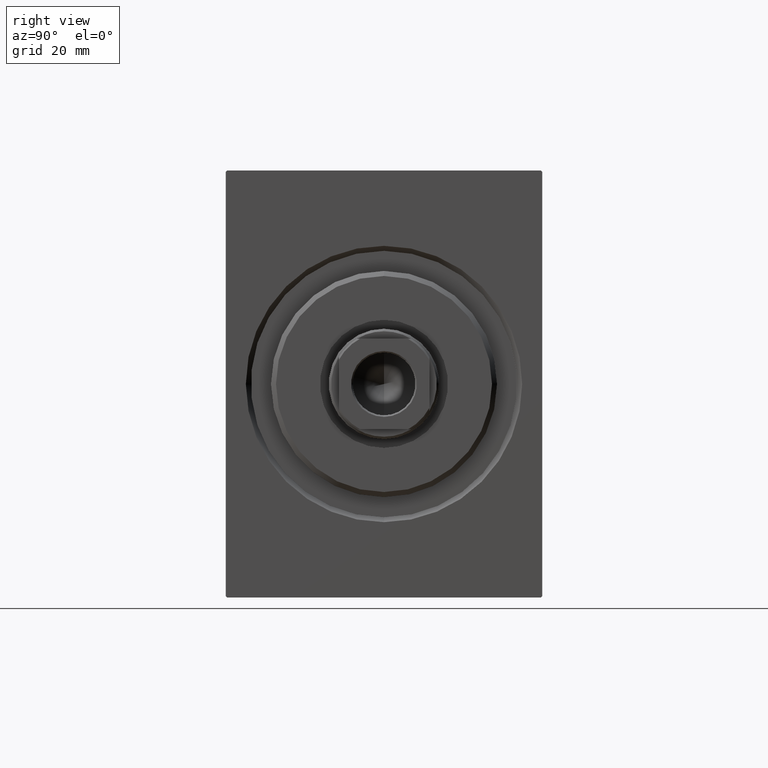
[diagram: clean part render]
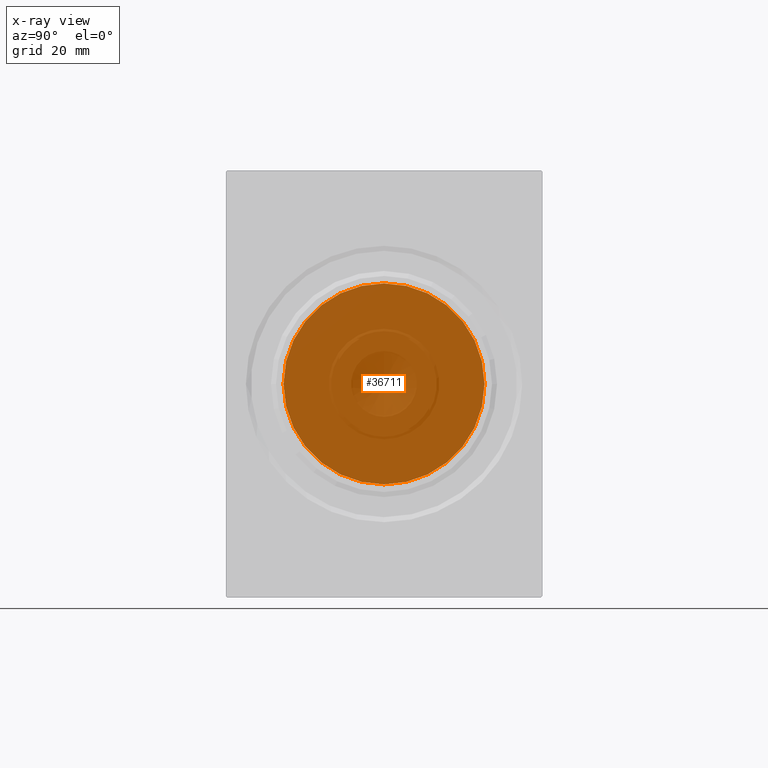
[diagram: x-ray — body ghosted, one internal face saturated and labeled with its STEP entity id]
A machine part, right view, then the same camera in x-ray: the body is ghosted and one INTERNAL B-rep face — a face not visible from any outside direction — is saturated and labeled: STEP entity #36711.
In plain terms, the highlighted planar face has unit normal (1, 0, -0).
Its self-contained STEP definition (entity closure, byte-faithful):
#1310 = FACE_OUTER_BOUND ( 'NONE', #24585, .T. ) ;
#2957 = DIRECTION ( 'NONE',  ( 0.000000000000000000, 0.000000000000000000, 1.000000000000000000 ) ) ;
#10484 = CARTESIAN_POINT ( 'NONE',  ( 76.00000000000000000, 2.449293598294706513E-15, -20.00000000000000000 ) ) ;
#12656 = VERTEX_POINT ( 'NONE', #36279 ) ;
#14313 = DIRECTION ( 'NONE',  ( -1.000000000000000000, 0.000000000000000000, 0.000000000000000000 ) ) ;
#14563 = DIRECTION ( 'NONE',  ( 0.000000000000000000, 0.000000000000000000, 1.000000000000000000 ) ) ;
#15874 = AXIS2_PLACEMENT_3D ( 'NONE', #33642, #34497, #14563 ) ;
#15948 = VERTEX_POINT ( 'NONE', #10484 ) ;
#16644 = CIRCLE ( 'NONE', #20126, 20.00000000000000000 ) ;
#19687 = CARTESIAN_POINT ( 'NONE',  ( 76.00000000000000000, 0.000000000000000000, 0.000000000000000000 ) ) ;
#20126 = AXIS2_PLACEMENT_3D ( 'NONE', #19687, #26203, #2957 ) ;
#21049 = CARTESIAN_POINT ( 'NONE',  ( 76.00000000000000000, 0.000000000000000000, 0.000000000000000000 ) ) ;
#21317 = EDGE_CURVE ( 'NONE', #12656, #15948, #33639, .T. ) ;
#24317 = DIRECTION ( 'NONE',  ( 0.000000000000000000, 0.000000000000000000, 1.000000000000000000 ) ) ;
#24585 = EDGE_LOOP ( 'NONE', ( #27148, #31436 ) ) ;
#26033 = AXIS2_PLACEMENT_3D ( 'NONE', #21049, #14313, #24317 ) ;
#26203 = DIRECTION ( 'NONE',  ( -1.000000000000000000, 0.000000000000000000, 0.000000000000000000 ) ) ;
#27148 = ORIENTED_EDGE ( 'NONE', *, *, #21317, .T. ) ;
#31436 = ORIENTED_EDGE ( 'NONE', *, *, #34709, .T. ) ;
#33639 = CIRCLE ( 'NONE', #26033, 20.00000000000000000 ) ;
#33642 = CARTESIAN_POINT ( 'NONE',  ( 76.00000000000000000, 0.000000000000000000, 0.000000000000000000 ) ) ;
#34497 = DIRECTION ( 'NONE',  ( -1.000000000000000000, 0.000000000000000000, 0.000000000000000000 ) ) ;
#34709 = EDGE_CURVE ( 'NONE', #15948, #12656, #16644, .T. ) ;
#36279 = CARTESIAN_POINT ( 'NONE',  ( 76.00000000000000000, 0.000000000000000000, 20.00000000000000000 ) ) ;
#36711 = ADVANCED_FACE ( 'NONE', ( #1310 ), #37328, .T. ) ;
#37328 = PLANE ( 'NONE',  #15874 ) ;